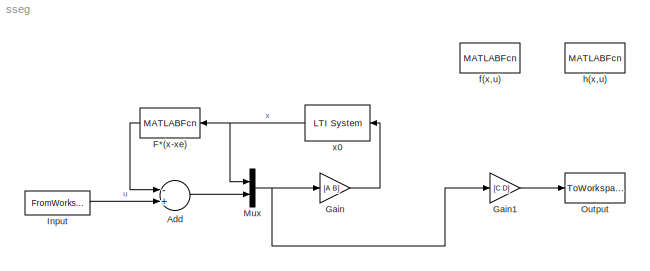
MODEL sseg
KIND model
BLOCK [Sum] Add
  InputSameDT = off
  Inputs = -+
  OutDataTypeStr = Inherit: Inherit via internal rule
  Ports = [2, 1]
  SID = 1
  SaturateOnIntegerOverflow = off
BLOCK [MATLABFcn] F*(x-xe)
  MATLABFcn = [F*(u-xe);0]
  Ports = [1, 1]
  SID = 2
BLOCK [Gain] Gain
  Gain = [A B]
  Multiplication = Matrix(K*u)
  OutDataTypeStr = Inherit: Inherit via internal rule
  ParamDataTypeStr = Inherit: Inherit via internal rule
  SID = 9
  SaturateOnIntegerOverflow = off
BLOCK [Gain] Gain1
  Gain = [C D]
  Multiplication = Matrix(K*u)
  OutDataTypeStr = Inherit: Inherit via internal rule
  ParamDataTypeStr = Inherit: Inherit via internal rule
  SID = 10
  SaturateOnIntegerOverflow = off
BLOCK [FromWorkspace] Input
  OutputAfterFinalValue = Setting to zero
  SID = 3
  SampleTime = 0
  VariableName = in
BLOCK [Mux] Mux
  DisplayOption = bar
  Inputs = 2
  Ports = [2, 1]
  SID = 4
BLOCK [ToWorkspace] Output
  MaxDataPoints = inf
  Ports = [1]
  SID = 5
  SampleTime = -1
  SaveFormat = Structure With Time
  VariableName = out
BLOCK [MATLABFcn] f(x,u)
  MATLABFcn = [A B]*u
  Ports = [1, 1]
  SID = 6
BLOCK [MATLABFcn] h(x,u)
  MATLABFcn = [C D]*u
  Ports = [1, 1]
  SID = 7
BLOCK [Reference] x0  REF=cstblocks/LTI System
  IC = x0
  Ports = [1, 1]
  SID = 8
  SourceBlock = cstblocks/LTI System
  SourceProductBaseCode = CT
  SourceProductName = Control System Toolbox
  SourceType = LTI Block
  sys = integrator
LINE Add:1 -> Mux:2
LINE F*(x-xe):1 -> Add:1
LINE Gain1:1 -> Output:1
LINE Gain:1 -> x0:1
LINE Input:1 -> Add:2
NET Mux:1 -> Gain1:1, Gain:1
NET x0:1 -> F*(x-xe):1, Mux:1
note: NET lines group one-source signal fan-out (src -> all destinations, sorted); 1:1 wires keep LINE
